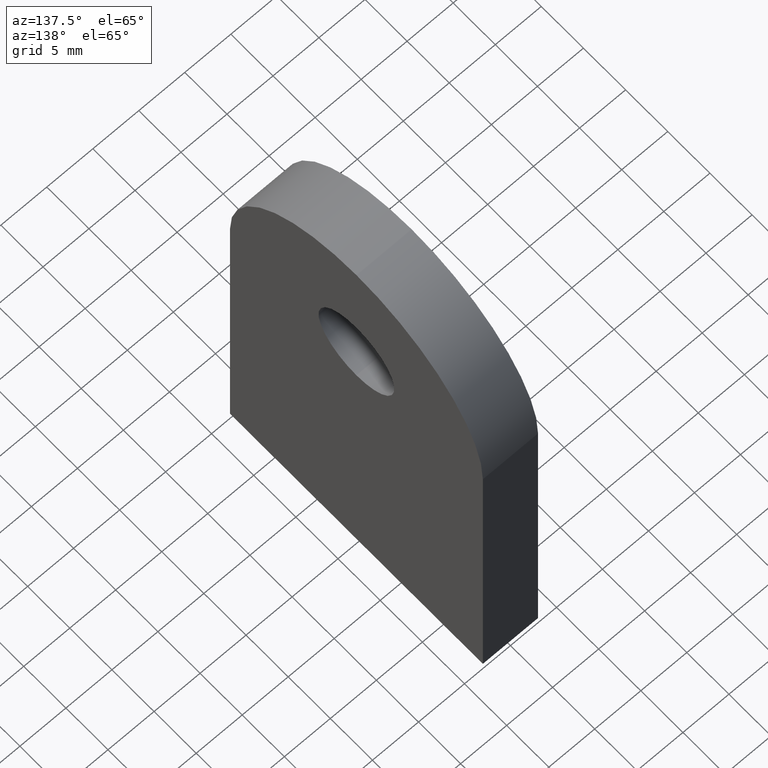
[diagram: clean part render]
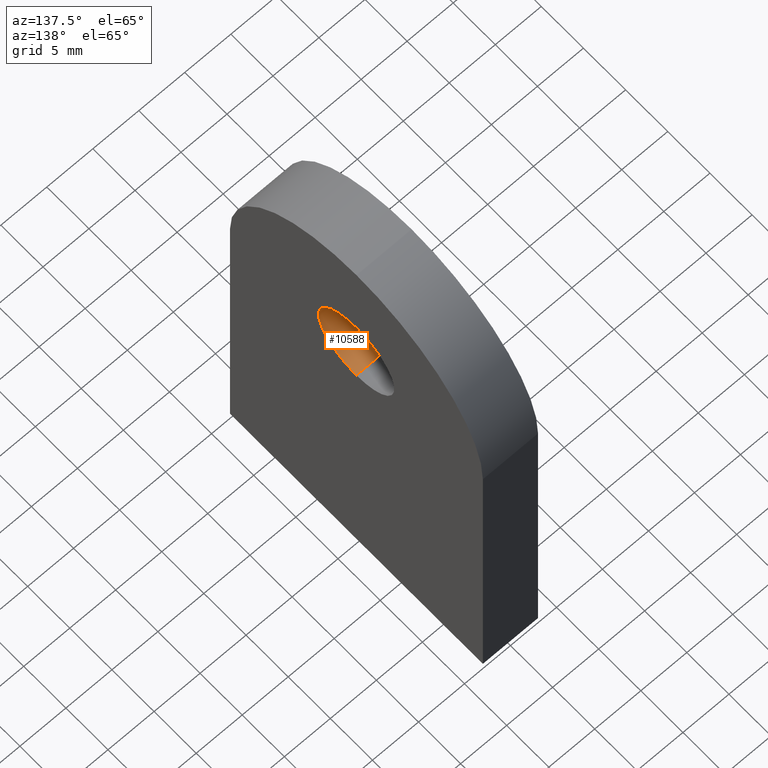
[diagram: same view with one face highlighted and labeled with its STEP entity id]
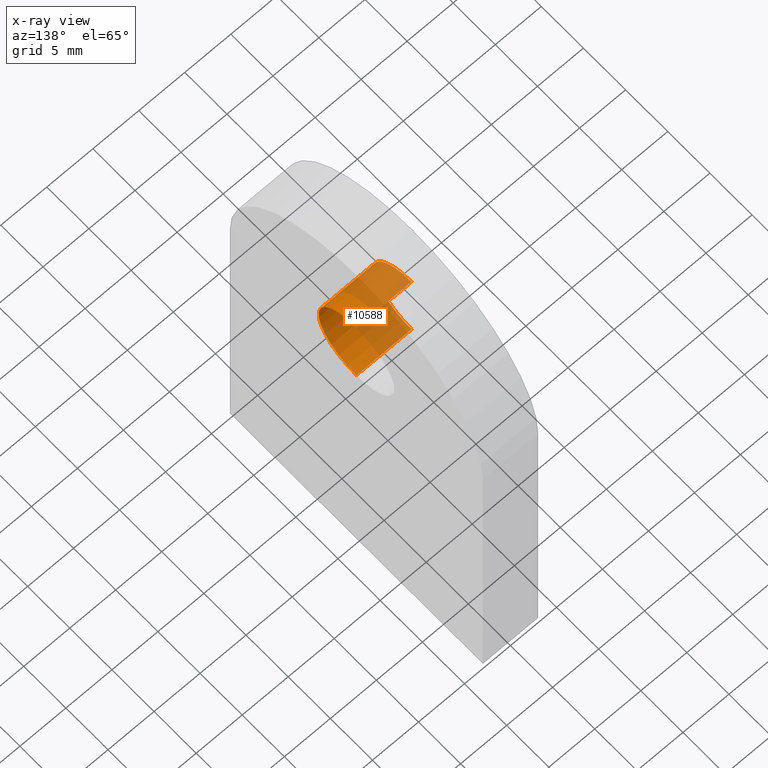
[diagram: x-ray of the same camera — body ghosted, the highlighted face saturated]
A machine part, auxiliary view. The second image highlights one B-rep face of the part: STEP entity #10588.
The next image is the same camera in x-ray: the body ghosted, the highlighted face saturated — about 54% of this face is hidden behind the body in this view.
In plain terms, the highlighted cylindrical surface (partial cylindrical patch) has radius 4.5 mm, axis along (1, -0, -0).
Its self-contained STEP definition (entity closure, byte-faithful):
#155 = VECTOR ( 'NONE', #2225, 1000.000000000000000 ) ;
#747 = ORIENTED_EDGE ( 'NONE', *, *, #4190, .T. ) ;
#872 = EDGE_CURVE ( 'NONE', #3379, #6853, #11124, .T. ) ;
#992 = LINE ( 'NONE', #3167, #155 ) ;
#1221 = CARTESIAN_POINT ( 'NONE',  ( -3.000000000000000000, 0.0000000000000000000, 35.50000000000000000 ) ) ;
#1677 = DIRECTION ( 'NONE',  ( 0.0000000000000000000, 0.0000000000000000000, -1.000000000000000000 ) ) ;
#2225 = DIRECTION ( 'NONE',  ( 1.000000000000000000, -0.0000000000000000000, -0.0000000000000000000 ) ) ;
#2312 = FACE_OUTER_BOUND ( 'NONE', #9998, .T. ) ;
#2388 = ORIENTED_EDGE ( 'NONE', *, *, #872, .T. ) ;
#2538 = VERTEX_POINT ( 'NONE', #7226 ) ;
#3149 = DIRECTION ( 'NONE',  ( 0.0000000000000000000, 0.0000000000000000000, -1.000000000000000000 ) ) ;
#3167 = CARTESIAN_POINT ( 'NONE',  ( -3.000000000000000000, 0.0000000000000000000, 30.99999999999999600 ) ) ;
#3379 = VERTEX_POINT ( 'NONE', #4113 ) ;
#3480 = ORIENTED_EDGE ( 'NONE', *, *, #5671, .F. ) ;
#3837 = VERTEX_POINT ( 'NONE', #4228 ) ;
#4113 = CARTESIAN_POINT ( 'NONE',  ( -3.000000000000000000, 5.510910596163087600E-016, 40.00000000000000000 ) ) ;
#4190 = EDGE_CURVE ( 'NONE', #6853, #2538, #7347, .T. ) ;
#4228 = CARTESIAN_POINT ( 'NONE',  ( -3.000000000000000000, 0.0000000000000000000, 30.99999999999999600 ) ) ;
#4968 = CARTESIAN_POINT ( 'NONE',  ( 3.000000000000000000, 5.510910596163087600E-016, 40.00000000000000000 ) ) ;
#5671 = EDGE_CURVE ( 'NONE', #3837, #2538, #992, .T. ) ;
#5913 = CYLINDRICAL_SURFACE ( 'NONE', #11132, 4.500000000000000900 ) ;
#6047 = CARTESIAN_POINT ( 'NONE',  ( 3.000000000000000000, 0.0000000000000000000, 35.50000000000000000 ) ) ;
#6545 = DIRECTION ( 'NONE',  ( 1.000000000000000000, -0.0000000000000000000, -0.0000000000000000000 ) ) ;
#6853 = VERTEX_POINT ( 'NONE', #4968 ) ;
#6935 = AXIS2_PLACEMENT_3D ( 'NONE', #6047, #6965, #1677 ) ;
#6965 = DIRECTION ( 'NONE',  ( 1.000000000000000000, 0.0000000000000000000, 0.0000000000000000000 ) ) ;
#7010 = CARTESIAN_POINT ( 'NONE',  ( -3.000000000000000000, 5.510910596163090500E-016, 40.00000000000000000 ) ) ;
#7191 = DIRECTION ( 'NONE',  ( 1.000000000000000000, -0.0000000000000000000, -0.0000000000000000000 ) ) ;
#7226 = CARTESIAN_POINT ( 'NONE',  ( 3.000000000000000000, 0.0000000000000000000, 30.99999999999999600 ) ) ;
#7299 = CIRCLE ( 'NONE', #10163, 4.500000000000000900 ) ;
#7344 = EDGE_CURVE ( 'NONE', #3379, #3837, #7299, .T. ) ;
#7347 = CIRCLE ( 'NONE', #6935, 4.500000000000000900 ) ;
#8549 = VECTOR ( 'NONE', #7191, 1000.000000000000000 ) ;
#8905 = ORIENTED_EDGE ( 'NONE', *, *, #7344, .F. ) ;
#9094 = DIRECTION ( 'NONE',  ( 0.0000000000000000000, 0.0000000000000000000, -1.000000000000000000 ) ) ;
#9298 = DIRECTION ( 'NONE',  ( 1.000000000000000000, 0.0000000000000000000, 0.0000000000000000000 ) ) ;
#9998 = EDGE_LOOP ( 'NONE', ( #8905, #2388, #747, #3480 ) ) ;
#10163 = AXIS2_PLACEMENT_3D ( 'NONE', #11066, #9298, #3149 ) ;
#10588 = ADVANCED_FACE ( 'NONE', ( #2312 ), #5913, .F. ) ;
#11066 = CARTESIAN_POINT ( 'NONE',  ( -3.000000000000000000, 0.0000000000000000000, 35.50000000000000000 ) ) ;
#11124 = LINE ( 'NONE', #7010, #8549 ) ;
#11132 = AXIS2_PLACEMENT_3D ( 'NONE', #1221, #6545, #9094 ) ;